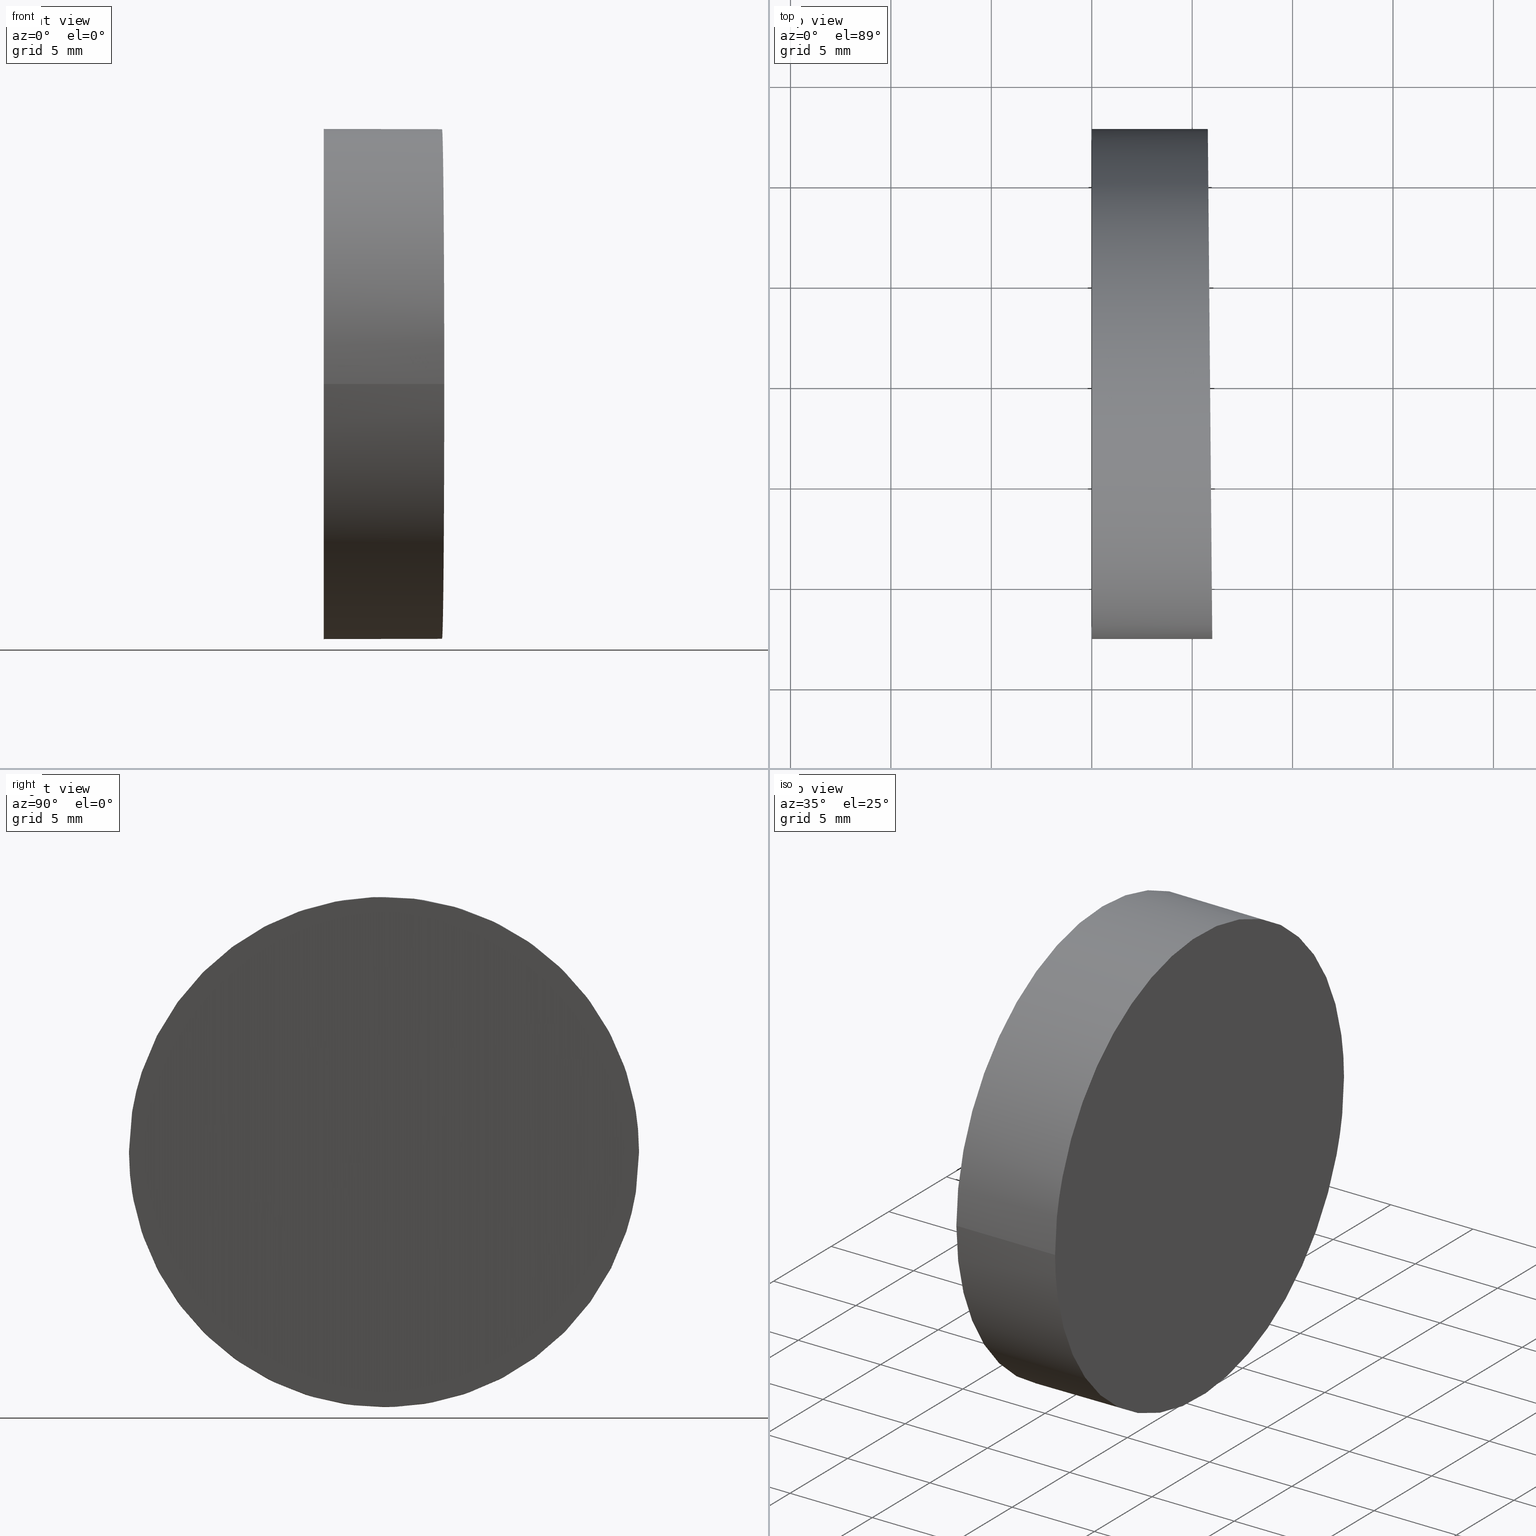
[diagram: canonical four-view strip — front | top / right | iso, engineering-drawing reading convention]
A machine part, canonical four-view strip (front | top / right | iso — engineering-drawing reading convention). The complete STEP part file that produces these views, byte-faithful:
ISO-10303-21;
HEADER;
FILE_DESCRIPTION (( 'STEP AP214' ),
    '1' );
FILE_NAME ('197503.STEP',
    '2019-07-08T05:59:56',
    ( 'user' ),
    ( '΢���й�' ),
    'SwSTEP 2.0',
    'SolidWorks 2016',
    '' );
FILE_SCHEMA (( 'AUTOMOTIVE_DESIGN' ));
ENDSEC;

DATA;
#1 = EDGE_CURVE ( 'NONE', #63, #12, #26, .T. ) ;
#2 = SHAPE_DEFINITION_REPRESENTATION ( #38, #132 ) ;
#3 = PRODUCT_DEFINITION_CONTEXT ( 'detailed design', #99, 'design' ) ;
#4 = CARTESIAN_POINT ( 'NONE',  ( 6.000000000000003600, -12.69999999999999900, 12.69999999999999900 ) ) ;
#5 = FILL_AREA_STYLE_COLOUR ( '', #54 ) ;
#6 = FACE_OUTER_BOUND ( 'NONE', #95, .T. ) ;
#7 = AXIS2_PLACEMENT_3D ( 'NONE', #102, #92, #25 ) ;
#8 = DIRECTION ( 'NONE',  ( -0.9999619230641714200, -0.008726535498367004500, 0.0000000000000000000 ) ) ;
#9 = DIRECTION ( 'NONE',  ( -1.000000000000000000, -1.224646799147353200E-016, -0.0000000000000000000 ) ) ;
#10 = VECTOR ( 'NONE', #9, 1000.000000000000000 ) ;
#11 = PRESENTATION_STYLE_ASSIGNMENT (( #44 ) ) ;
#12 = VERTEX_POINT ( 'NONE', #62 ) ;
#13 = ADVANCED_FACE ( 'NONE', ( #122 ), #50, .F. ) ;
#14 = PRESENTATION_STYLE_ASSIGNMENT (( #85 ) ) ;
#15 = AXIS2_PLACEMENT_3D ( 'NONE', #105, #65, #21 ) ;
#16 = EDGE_CURVE ( 'NONE', #12, #111, #98, .T. ) ;
#17 = ORIENTED_EDGE ( 'NONE', *, *, #1, .F. ) ;
#18 = FACE_OUTER_BOUND ( 'NONE', #70, .T. ) ;
#19 = EDGE_LOOP ( 'NONE', ( #64, #20 ) ) ;
#20 = ORIENTED_EDGE ( 'NONE', *, *, #110, .F. ) ;
#21 = DIRECTION ( 'NONE',  ( 1.365923996832131400E-016, -1.000000000000000000, 0.0000000000000000000 ) ) ;
#22 =( NAMED_UNIT ( * ) SI_UNIT ( $, .STERADIAN. ) SOLID_ANGLE_UNIT ( ) );
#23 = STYLED_ITEM ( 'NONE', ( #11 ), #91 ) ;
#24 = CARTESIAN_POINT ( 'NONE',  ( 5.778337558114906800, 12.69999999999999900, -12.70000000000001000 ) ) ;
#25 = DIRECTION ( 'NONE',  ( 1.224646799147353700E-016, -1.000000000000000000, 0.0000000000000000000 ) ) ;
#26 = LINE ( 'NONE', #58, #41 ) ;
#27 = CARTESIAN_POINT ( 'NONE',  ( 6.000000000000003600, -12.69999999999999400, -12.70000000000001000 ) ) ;
#28 = SURFACE_SIDE_STYLE ('',( #30 ) ) ;
#29 = CARTESIAN_POINT ( 'NONE',  ( 6.000000000000003600, -12.69999999999999900, 12.69999999999999900 ) ) ;
#30 = SURFACE_STYLE_FILL_AREA ( #120 ) ;
#31 = PRODUCT_CONTEXT ( 'NONE', #138, 'mechanical' ) ;
#32 = AXIS2_PLACEMENT_3D ( 'NONE', #80, #134, #82 ) ;
#33 =( NAMED_UNIT ( * ) PLANE_ANGLE_UNIT ( ) SI_UNIT ( $, .RADIAN. ) );
#34 = CYLINDRICAL_SURFACE ( 'NONE', #121, 12.70000000000000100 ) ;
#35 = ADVANCED_FACE ( 'NONE', ( #36 ), #57, .F. ) ;
#36 = FACE_OUTER_BOUND ( 'NONE', #96, .T. ) ;
#37 = DIRECTION ( 'NONE',  ( -1.000000000000000000, -1.224646799147353200E-016, -0.0000000000000000000 ) ) ;
#38 = PRODUCT_DEFINITION_SHAPE ( 'NONE', 'NONE',  #90 ) ;
#39 = CARTESIAN_POINT ( 'NONE',  ( 1.555301434917139200E-015, -12.70000000000000100, 12.69999999999999900 ) ) ;
#40 = DIRECTION ( 'NONE',  ( 1.365923996832131400E-016, -1.000000000000000000, 0.0000000000000000000 ) ) ;
#41 = VECTOR ( 'NONE', #49, 1000.000000000000000 ) ;
#42 = ORIENTED_EDGE ( 'NONE', *, *, #104, .T. ) ;
#43 =( LENGTH_UNIT ( ) NAMED_UNIT ( * ) SI_UNIT ( .MILLI., .METRE. ) );
#44 = SURFACE_STYLE_USAGE ( .BOTH. , #28 ) ;
#45 = FILL_AREA_STYLE ('',( #5 ) ) ;
#46 = CLOSED_SHELL ( 'NONE', ( #97, #35, #13, #119 ) ) ;
#47 = CARTESIAN_POINT ( 'NONE',  ( 5.778337558114906800, 12.70000000000000300, 12.70000000000000100 ) ) ;
#48 =( GEOMETRIC_REPRESENTATION_CONTEXT ( 3 ) GLOBAL_UNCERTAINTY_ASSIGNED_CONTEXT ( ( #89 ) ) GLOBAL_UNIT_ASSIGNED_CONTEXT ( ( #116, #33, #93 ) ) REPRESENTATION_CONTEXT ( 'NONE', 'WORKASPACE' ) );
#49 = DIRECTION ( 'NONE',  ( -1.000000000000000000, -1.224646799147353200E-016, -0.0000000000000000000 ) ) ;
#50 = PLANE ( 'NONE',  #52 ) ;
#51 = UNCERTAINTY_MEASURE_WITH_UNIT (LENGTH_MEASURE( 1.000000000000000100E-005 ), #106, 'distance_accuracy_value', 'NONE');
#52 = AXIS2_PLACEMENT_3D ( 'NONE', #107, #8, #114 ) ;
#53 = ORIENTED_EDGE ( 'NONE', *, *, #124, .F. ) ;
#54 = COLOUR_RGB ( '',1.000000000000000000, 1.000000000000000000, 1.000000000000000000 ) ;
#55 = AXIS2_PLACEMENT_3D ( 'NONE', #71, #135, #112 ) ;
#56 = SURFACE_STYLE_FILL_AREA ( #45 ) ;
#57 = PLANE ( 'NONE',  #55 ) ;
#58 = CARTESIAN_POINT ( 'NONE',  ( 9.999999999999998200, 12.70000000000000300, 12.70000000000000100 ) ) ;
#59 =( NAMED_UNIT ( * ) PLANE_ANGLE_UNIT ( ) SI_UNIT ( $, .RADIAN. ) );
#60 = CARTESIAN_POINT ( 'NONE',  ( 10.00000000000000200, -12.69999999999999900, 12.69999999999999900 ) ) ;
#61 = DIRECTION ( 'NONE',  ( -1.000000000000000000, -1.224646799147353700E-016, 0.0000000000000000000 ) ) ;
#62 = CARTESIAN_POINT ( 'NONE',  ( -1.555301434917139200E-015, 12.70000000000000100, 12.70000000000000100 ) ) ;
#63 = VERTEX_POINT ( 'NONE', #77 ) ;
#64 = ORIENTED_EDGE ( 'NONE', *, *, #128, .F. ) ;
#65 = DIRECTION ( 'NONE',  ( -1.000000000000000000, -1.224646799147353200E-016, -0.0000000000000000000 ) ) ;
#66 = COLOUR_RGB ( '',1.000000000000000000, 1.000000000000000000, 1.000000000000000000 ) ;
#67 = ORIENTED_EDGE ( 'NONE', *, *, #128, .T. ) ;
#68 = CARTESIAN_POINT ( 'NONE',  ( 10.00000000000000000, 1.224646799147353300E-015, 12.69999999999999900 ) ) ;
#69 = PRODUCT ( '197503', '197503', '', ( #31 ) ) ;
#70 = EDGE_LOOP ( 'NONE', ( #17, #130, #109, #101 ) ) ;
#71 = CARTESIAN_POINT ( 'NONE',  ( 3.588440821193371300E-016, 12.69999999999999800, 25.39999999999999900 ) ) ;
#72 =( NAMED_UNIT ( * ) SI_UNIT ( $, .STERADIAN. ) SOLID_ANGLE_UNIT ( ) );
#73 =( GEOMETRIC_REPRESENTATION_CONTEXT ( 3 ) GLOBAL_UNCERTAINTY_ASSIGNED_CONTEXT ( ( #137 ) ) GLOBAL_UNIT_ASSIGNED_CONTEXT ( ( #43, #103, #72 ) ) REPRESENTATION_CONTEXT ( 'NONE', 'WORKASPACE' ) );
#74 = MECHANICAL_DESIGN_GEOMETRIC_PRESENTATION_REPRESENTATION (  '', ( #23 ), #73 ) ;
#75 = ORIENTED_EDGE ( 'NONE', *, *, #104, .F. ) ;
#76 = APPLICATION_PROTOCOL_DEFINITION ( 'draft international standard', 'automotive_design', 1998, #138 ) ;
#77 = CARTESIAN_POINT ( 'NONE',  ( 5.778337558114906800, 12.70000000000000300, 12.70000000000000100 ) ) ;
#78 = CARTESIAN_POINT ( 'NONE',  ( 6.000000000000003600, -12.70000000000000500, 38.09999999999999400 ) ) ;
#79 = ORIENTED_EDGE ( 'NONE', *, *, #1, .T. ) ;
#80 = CARTESIAN_POINT ( 'NONE',  ( 0.0000000000000000000, 0.0000000000000000000, 0.0000000000000000000 ) ) ;
#81 = CARTESIAN_POINT ( 'NONE',  ( 5.778337558114906800, 12.70000000000000300, 12.70000000000000100 ) ) ;
#82 = DIRECTION ( 'NONE',  ( 1.000000000000000000, 0.0000000000000000000, 0.0000000000000000000 ) ) ;
#83 = PRESENTATION_LAYER_ASSIGNMENT (  '', '', ( #23 ) ) ;
#84 = CARTESIAN_POINT ( 'NONE',  ( 0.0000000000000000000, 0.0000000000000000000, 12.69999999999999900 ) ) ;
#85 = SURFACE_STYLE_USAGE ( .BOTH. , #127 ) ;
#86 = CYLINDRICAL_SURFACE ( 'NONE', #15, 12.70000000000000100 ) ;
#87 = LINE ( 'NONE', #60, #10 ) ;
#88 = CARTESIAN_POINT ( 'NONE',  ( 5.778337558114906800, 12.69999999999999900, 38.10000000000000900 ) ) ;
#89 = UNCERTAINTY_MEASURE_WITH_UNIT (LENGTH_MEASURE( 1.000000000000000100E-005 ), #116, 'distance_accuracy_value', 'NONE');
#90 = PRODUCT_DEFINITION ( 'δ֪', '', #100, #3 ) ;
#91 = MANIFOLD_SOLID_BREP ( '�г�-����1', #46 ) ;
#92 = DIRECTION ( 'NONE',  ( -1.000000000000000000, -1.224646799147353700E-016, 0.0000000000000000000 ) ) ;
#93 =( NAMED_UNIT ( * ) SI_UNIT ( $, .STERADIAN. ) SOLID_ANGLE_UNIT ( ) );
#94 = STYLED_ITEM ( 'NONE', ( #14 ), #132 ) ;
#95 = EDGE_LOOP ( 'NONE', ( #67, #79, #75, #53 ) ) ;
#96 = EDGE_LOOP ( 'NONE', ( #42, #125 ) ) ;
#97 = ADVANCED_FACE ( 'NONE', ( #6 ), #86, .T. ) ;
#98 = CIRCLE ( 'NONE', #7, 12.70000000000000100 ) ;
#99 = APPLICATION_CONTEXT ( 'automotive_design' ) ;
#100 = PRODUCT_DEFINITION_FORMATION_WITH_SPECIFIED_SOURCE ( '�κ�', '', #69, .NOT_KNOWN. ) ;
#101 = ORIENTED_EDGE ( 'NONE', *, *, #16, .F. ) ;
#102 = CARTESIAN_POINT ( 'NONE',  ( 0.0000000000000000000, 0.0000000000000000000, 12.69999999999999900 ) ) ;
#103 =( NAMED_UNIT ( * ) PLANE_ANGLE_UNIT ( ) SI_UNIT ( $, .RADIAN. ) );
#104 = EDGE_CURVE ( 'NONE', #111, #12, #136, .T. ) ;
#105 = CARTESIAN_POINT ( 'NONE',  ( 10.00000000000000000, 1.224646799147353300E-015, 12.69999999999999900 ) ) ;
#106 =( LENGTH_UNIT ( ) NAMED_UNIT ( * ) SI_UNIT ( .MILLI., .METRE. ) );
#107 = CARTESIAN_POINT ( 'NONE',  ( 6.000000000000003600, -12.70000000000000100, 25.39999999999999900 ) ) ;
#108 = AXIS2_PLACEMENT_3D ( 'NONE', #84, #61, #118 ) ;
#109 = ORIENTED_EDGE ( 'NONE', *, *, #124, .T. ) ;
#110 = EDGE_CURVE ( 'NONE', #63, #133, #115, .T. ) ;
#111 = VERTEX_POINT ( 'NONE', #39 ) ;
#112 = DIRECTION ( 'NONE',  ( -1.224646799147353200E-016, 1.000000000000000000, 0.0000000000000000000 ) ) ;
#113 =( GEOMETRIC_REPRESENTATION_CONTEXT ( 3 ) GLOBAL_UNCERTAINTY_ASSIGNED_CONTEXT ( ( #51 ) ) GLOBAL_UNIT_ASSIGNED_CONTEXT ( ( #106, #59, #22 ) ) REPRESENTATION_CONTEXT ( 'NONE', 'WORKASPACE' ) );
#114 = DIRECTION ( 'NONE',  ( 0.008726535498367004500, -0.9999619230641714200, 0.0000000000000000000 ) ) ;
#115 =( BOUNDED_CURVE ( )  B_SPLINE_CURVE ( 3, ( #81, #24, #27, #29 ),
 .UNSPECIFIED., .F., .T. ) 
 B_SPLINE_CURVE_WITH_KNOTS ( ( 4, 4 ),
 ( 0.0000000000000000000, 3.141592653589793100 ),
 .UNSPECIFIED. ) 
 CURVE ( )  GEOMETRIC_REPRESENTATION_ITEM ( )  RATIONAL_B_SPLINE_CURVE ( ( 1.000000000000000000, 0.3333333333333333700, 0.3333333333333333700, 1.000000000000000000 ) ) 
 REPRESENTATION_ITEM ( '' )  );
#116 =( LENGTH_UNIT ( ) NAMED_UNIT ( * ) SI_UNIT ( .MILLI., .METRE. ) );
#117 = MECHANICAL_DESIGN_GEOMETRIC_PRESENTATION_REPRESENTATION (  '', ( #94 ), #48 ) ;
#118 = DIRECTION ( 'NONE',  ( 1.224646799147353700E-016, -1.000000000000000000, 0.0000000000000000000 ) ) ;
#119 = ADVANCED_FACE ( 'NONE', ( #18 ), #34, .T. ) ;
#120 = FILL_AREA_STYLE ('',( #126 ) ) ;
#121 = AXIS2_PLACEMENT_3D ( 'NONE', #68, #37, #40 ) ;
#122 = FACE_OUTER_BOUND ( 'NONE', #19, .T. ) ;
#123 = APPLICATION_PROTOCOL_DEFINITION ( 'draft international standard', 'automotive_design', 1998, #99 ) ;
#124 = EDGE_CURVE ( 'NONE', #133, #111, #87, .T. ) ;
#125 = ORIENTED_EDGE ( 'NONE', *, *, #16, .T. ) ;
#126 = FILL_AREA_STYLE_COLOUR ( '', #66 ) ;
#127 = SURFACE_SIDE_STYLE ('',( #56 ) ) ;
#128 = EDGE_CURVE ( 'NONE', #133, #63, #129, .T. ) ;
#129 =( BOUNDED_CURVE ( )  B_SPLINE_CURVE ( 3, ( #4, #78, #88, #47 ),
 .UNSPECIFIED., .F., .F. ) 
 B_SPLINE_CURVE_WITH_KNOTS ( ( 4, 4 ),
 ( 3.141592653589793100, 6.283185307179586200 ),
 .UNSPECIFIED. ) 
 CURVE ( )  GEOMETRIC_REPRESENTATION_ITEM ( )  RATIONAL_B_SPLINE_CURVE ( ( 1.000000000000000000, 0.3333333333333333700, 0.3333333333333333700, 1.000000000000000000 ) ) 
 REPRESENTATION_ITEM ( '' )  );
#130 = ORIENTED_EDGE ( 'NONE', *, *, #110, .T. ) ;
#131 = PRODUCT_RELATED_PRODUCT_CATEGORY ( 'part', '', ( #69 ) ) ;
#132 = ADVANCED_BREP_SHAPE_REPRESENTATION ( '197503', ( #91, #32 ), #113 ) ;
#133 = VERTEX_POINT ( 'NONE', #140 ) ;
#134 = DIRECTION ( 'NONE',  ( 0.0000000000000000000, 0.0000000000000000000, 1.000000000000000000 ) ) ;
#135 = DIRECTION ( 'NONE',  ( 1.000000000000000000, 1.224646799147353200E-016, -0.0000000000000000000 ) ) ;
#136 = CIRCLE ( 'NONE', #108, 12.70000000000000100 ) ;
#137 = UNCERTAINTY_MEASURE_WITH_UNIT (LENGTH_MEASURE( 1.000000000000000100E-005 ), #43, 'distance_accuracy_value', 'NONE');
#138 = APPLICATION_CONTEXT ( 'automotive_design' ) ;
#139 = PRESENTATION_LAYER_ASSIGNMENT (  '', '', ( #94 ) ) ;
#140 = CARTESIAN_POINT ( 'NONE',  ( 6.000000000000003600, -12.69999999999999900, 12.69999999999999900 ) ) ;
ENDSEC;
END-ISO-10303-21;
